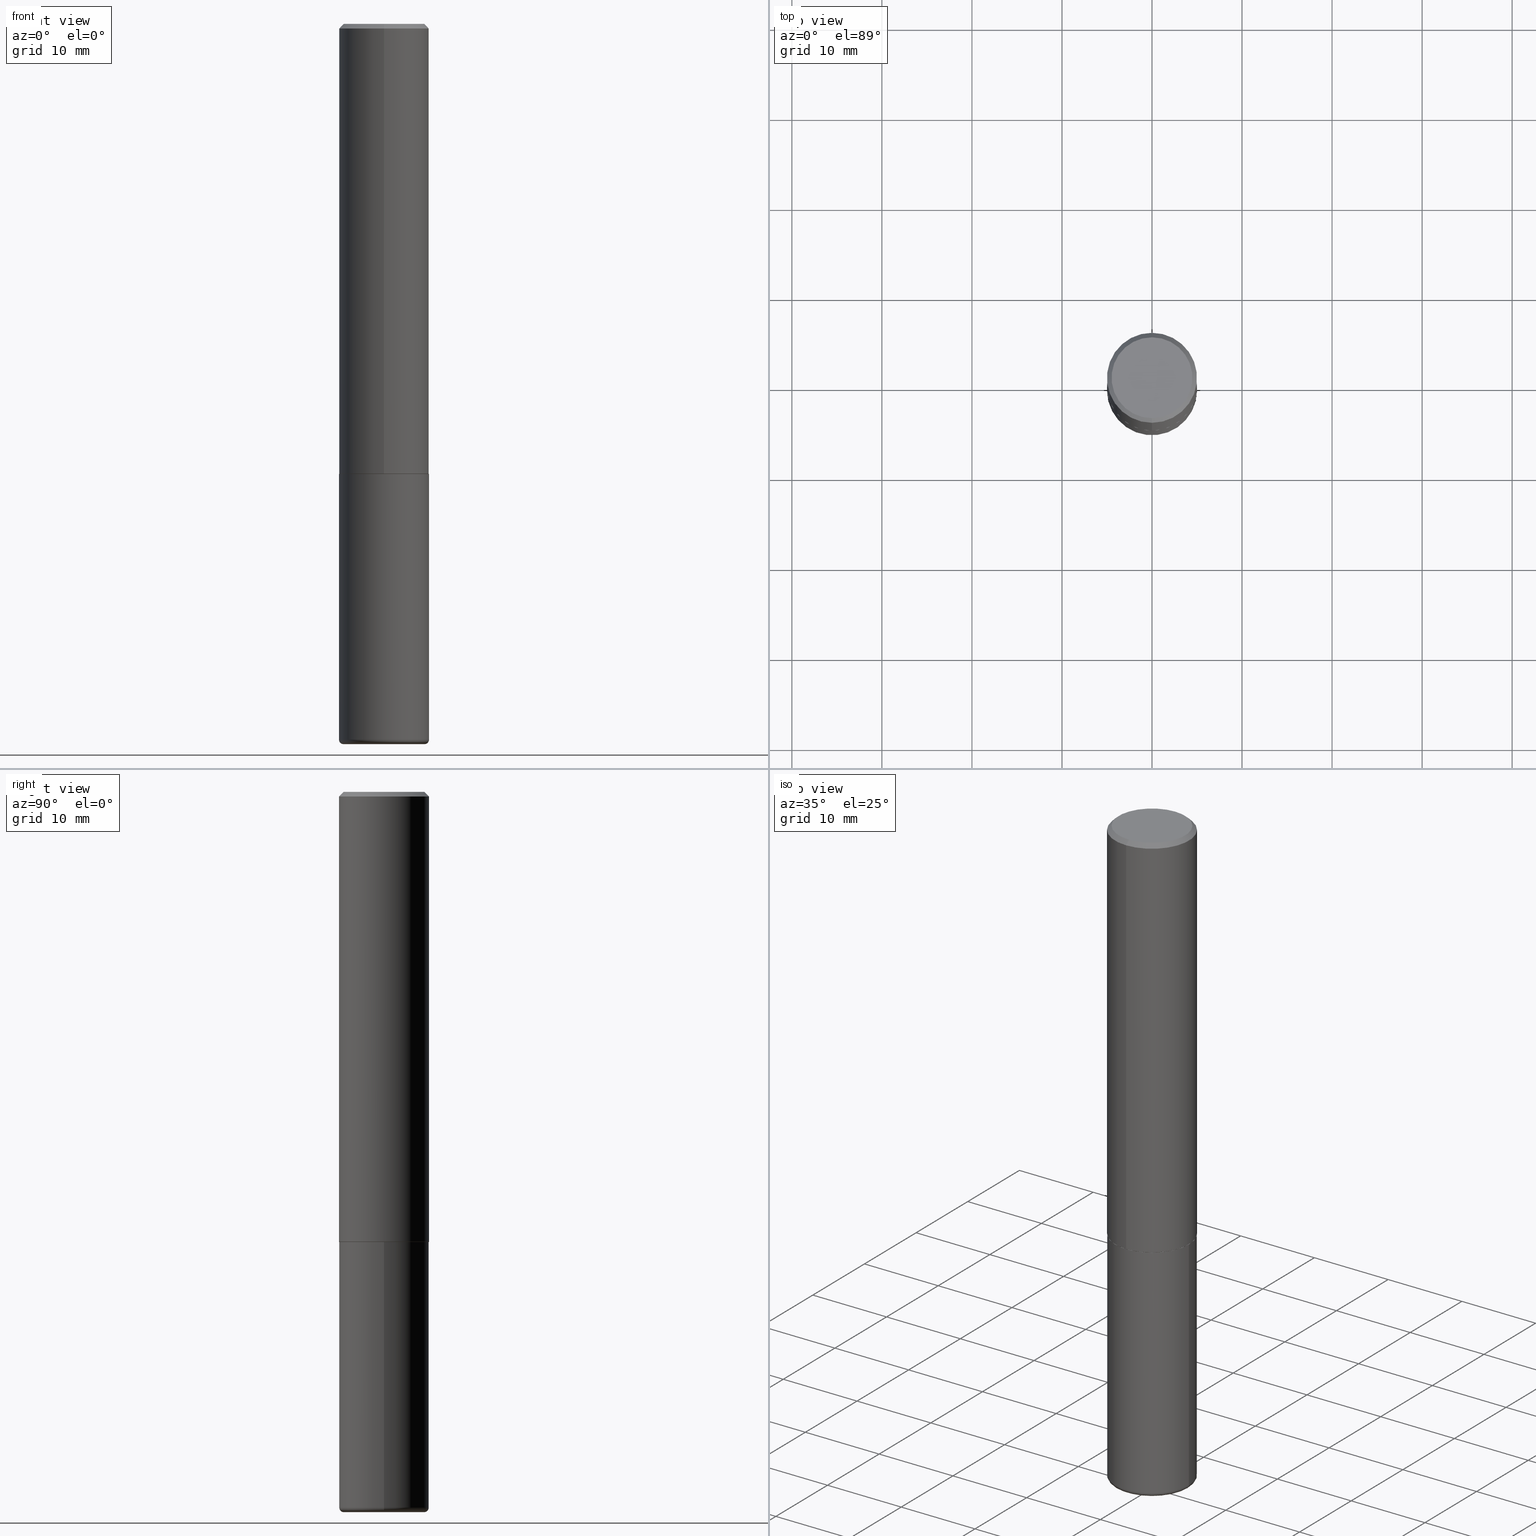
[diagram: canonical four-view strip — front | top / right | iso, engineering-drawing reading convention]
A machine part, canonical four-view strip (front | top / right | iso — engineering-drawing reading convention). The complete STEP part file that produces these views, byte-faithful:
ISO-10303-21;
HEADER;
FILE_DESCRIPTION (( 'STEP AP203' ),
    '1' );
FILE_NAME ('74412.STEP',
    '2024-03-06T15:12:04',
    ( '' ),
    ( '' ),
    'SwSTEP 2.0',
    'SolidWorks 2023',
    '' );
FILE_SCHEMA (( 'CONFIG_CONTROL_DESIGN' ));
ENDSEC;

DATA;
#1 = CALENDAR_DATE ( 2024, 6, 3 ) ;
#2 = CIRCLE ( 'NONE', #243, 0.1768499999999998407 ) ;
#3 = PLANE ( 'NONE',  #293 ) ;
#4 = EDGE_CURVE ( 'NONE', #362, #344, #64, .T. ) ;
#5 = DIRECTION ( 'NONE',  ( -6.982962677686265922E-15, -1.000000000000000000, 3.491767699944464545E-15 ) ) ;
#6 = DIRECTION ( 'NONE',  ( -2.445268841296851437E-29, 3.491767699944464545E-15, 1.000000000000000000 ) ) ;
#7 = CARTESIAN_POINT ( 'NONE',  ( 0.000000000000000000, 0.000000000000000000, 0.000000000000000000 ) ) ;
#8 = CALENDAR_DATE ( 2024, 6, 3 ) ;
#9 = AXIS2_PLACEMENT_3D ( 'NONE', #231, #6, #105 ) ;
#10 = APPROVAL_PERSON_ORGANIZATION ( #130, #324, #369 ) ;
#11 = ADVANCED_BREP_SHAPE_REPRESENTATION ( '74412', ( #114, #268, #96 ), #251 ) ;
#12 = ORIENTED_EDGE ( 'NONE', *, *, #149, .F. ) ;
#13 = ORIENTED_EDGE ( 'NONE', *, *, #414, .T. ) ;
#14 = EDGE_CURVE ( 'NONE', #250, #78, #208, .T. ) ;
#15 = CLOSED_SHELL ( 'NONE', ( #411, #229, #115, #104, #47, #366 ) ) ;
#16 = EDGE_LOOP ( 'NONE', ( #35, #174, #58, #79 ) ) ;
#17 = CLOSED_SHELL ( 'NONE', ( #373, #140, #365, #418, #90, #116, #219, #242 ) ) ;
#18 = SECURITY_CLASSIFICATION ( '', '', #56 ) ;
#19 = ORIENTED_EDGE ( 'NONE', *, *, #393, .F. ) ;
#20 = CARTESIAN_POINT ( 'NONE',  ( 0.1968499999999999694, -1.374596203102541411E-15, 9.598753983154298056E-30 ) ) ;
#21 = CARTESIAN_POINT ( 'NONE',  ( -1.350489030861325626E-15, -0.1968500000000001082, -0.01999999999999935510 ) ) ;
#22 = APPROVAL_ROLE ( '' ) ;
#23 = DIRECTION ( 'NONE',  ( -2.445468806185136597E-29, 3.491481338843145583E-15, 1.000000000000000000 ) ) ;
#24 = CC_DESIGN_PERSON_AND_ORGANIZATION_ASSIGNMENT ( #160, #257, ( #150 ) ) ;
#25 = VERTEX_POINT ( 'NONE', #125 ) ;
#26 = AXIS2_PLACEMENT_3D ( 'NONE', #97, #158, #322 ) ;
#27 = CARTESIAN_POINT ( 'NONE',  ( 1.304766576325678705E-15, 0.1768499999999998407, -3.955058252891884244E-16 ) ) ;
#28 = CARTESIAN_POINT ( 'NONE',  ( 1.234936949548815012E-15, 0.1768499999999998407, -5.065124715121833152E-16 ) ) ;
#29 = CARTESIAN_POINT ( 'NONE',  ( -5.428821863719041386E-45, 7.752188435212310874E-31, 2.220132924459896583E-16 ) ) ;
#30 = COORDINATED_UNIVERSAL_TIME_OFFSET ( 5, 0, .BEHIND. ) ;
#31 = ORIENTED_EDGE ( 'NONE', *, *, #334, .T. ) ;
#32 = ORIENTED_EDGE ( 'NONE', *, *, #163, .F. ) ;
#33 = CIRCLE ( 'NONE', #313, 0.1968500000000002470 ) ;
#34 = CIRCLE ( 'NONE', #46, 0.1771500000000000019 ) ;
#35 = ORIENTED_EDGE ( 'NONE', *, *, #73, .F. ) ;
#36 = DIRECTION ( 'NONE',  ( -6.982962677686265922E-15, -1.000000000000000000, 3.491767699944464940E-15 ) ) ;
#37 = CARTESIAN_POINT ( 'NONE',  ( 7.702248551960706711E-29, -1.099676962482037231E-14, -3.149600000000000399 ) ) ;
#38 = EDGE_CURVE ( 'NONE', #344, #61, #288, .T. ) ;
#39 = DIRECTION ( 'NONE',  ( -1.000000000000000000, 6.982962677686265922E-15, -4.876176775795935793E-29 ) ) ;
#40 = CIRCLE ( 'NONE', #9, 0.1958499999999999963 ) ;
#41 = DIRECTION ( 'NONE',  ( -1.000000000000000000, 6.982962677686265922E-15, -4.876176775795935793E-29 ) ) ;
#42 = CARTESIAN_POINT ( 'NONE',  ( -1.350489030861325626E-15, -0.1968500000000001082, -0.01999999999999935510 ) ) ;
#43 = DESIGN_CONTEXT ( 'detailed design', #395, 'design' ) ;
#44 = DIMENSIONAL_EXPONENTS ( 1.000000000000000000, 0.000000000000000000, 0.000000000000000000, 0.000000000000000000, 0.000000000000000000, 0.000000000000000000, 0.000000000000000000 ) ;
#45 = CARTESIAN_POINT ( 'NONE',  ( 0.1771500000000000019, -1.223380146317249313E-14, -3.149600000000000399 ) ) ;
#46 = AXIS2_PLACEMENT_3D ( 'NONE', #376, #23, #55 ) ;
#47 = ADVANCED_FACE ( 'NONE', ( #416 ), #106, .T. ) ;
#48 = ORIENTED_EDGE ( 'NONE', *, *, #68, .F. ) ;
#49 = DATE_AND_TIME ( #8, #356 ) ;
#50 = VERTEX_POINT ( 'NONE', #258 ) ;
#51 = DIRECTION ( 'NONE',  ( -2.445268841296851437E-29, 3.491767699944464545E-15, 1.000000000000000000 ) ) ;
#52 = EDGE_LOOP ( 'NONE', ( #347, #317, #66, #12 ) ) ;
#53 = CARTESIAN_POINT ( 'NONE',  ( 7.654072816478859974E-29, -1.092798744244516270E-14, -3.129900000000000571 ) ) ;
#54 = AXIS2_PLACEMENT_3D ( 'NONE', #198, #384, #226 ) ;
#55 = DIRECTION ( 'NONE',  ( 1.000000000000000000, -6.982962677686261189E-15, 0.000000000000000000 ) ) ;
#56 = SECURITY_CLASSIFICATION_LEVEL ( 'unclassified' ) ;
#57 = EDGE_CURVE ( 'NONE', #377, #362, #279, .T. ) ;
#58 = ORIENTED_EDGE ( 'NONE', *, *, #68, .T. ) ;
#59 = DIRECTION ( 'NONE',  ( -6.982962677686265922E-15, -1.000000000000000000, 4.184602492209747448E-15 ) ) ;
#60 = DIRECTION ( 'NONE',  ( -2.445268841296851437E-29, 3.491767699944464545E-15, 1.000000000000000000 ) ) ;
#61 = VERTEX_POINT ( 'NONE', #65 ) ;
#62 = CARTESIAN_POINT ( 'NONE',  ( -5.428821863719041386E-45, 7.752188435212310874E-31, 2.220132924459896583E-16 ) ) ;
#63 = APPLICATION_PROTOCOL_DEFINITION ( 'international standard', 'config_control_design', 1994, #397 ) ;
#64 = LINE ( 'NONE', #135, #269 ) ;
#65 = CARTESIAN_POINT ( 'NONE',  ( 1.374596203102542200E-15, 0.1968499999999999694, -0.02000000000000072900 ) ) ;
#66 = ORIENTED_EDGE ( 'NONE', *, *, #4, .T. ) ;
#67 = LINE ( 'NONE', #309, #166 ) ;
#68 = EDGE_CURVE ( 'NONE', #144, #210, #339, .T. ) ;
#69 = DIRECTION ( 'NONE',  ( -2.445268841296850876E-29, 3.491767699944464940E-15, 1.000000000000000000 ) ) ;
#70 = AXIS2_PLACEMENT_3D ( 'NONE', #37, #234, #39 ) ;
#71 = CARTESIAN_POINT ( 'NONE',  ( 4.813905344975440714E-29, -6.872981015512730918E-15, -1.968499999999999694 ) ) ;
#72 = CARTESIAN_POINT ( 'NONE',  ( 4.813905344975440714E-29, -6.872981015512730918E-15, -1.968499999999999694 ) ) ;
#73 = EDGE_CURVE ( 'NONE', #50, #88, #205, .T. ) ;
#74 = AXIS2_PLACEMENT_3D ( 'NONE', #352, #256, #350 ) ;
#75 = EDGE_CURVE ( 'NONE', #362, #377, #33, .T. ) ;
#76 = CYLINDRICAL_SURFACE ( 'NONE', #223, 0.1968500000000001360 ) ;
#77 = DIRECTION ( 'NONE',  ( -2.445268841296851437E-29, 3.491767699944464545E-15, 1.000000000000000000 ) ) ;
#78 = VERTEX_POINT ( 'NONE', #27 ) ;
#79 = ORIENTED_EDGE ( 'NONE', *, *, #207, .F. ) ;
#80 = ORIENTED_EDGE ( 'NONE', *, *, #334, .F. ) ;
#81 = LINE ( 'NONE', #315, #82 ) ;
#82 = VECTOR ( 'NONE', #182, 39.37007874015748143 ) ;
#83 = DATE_TIME_ROLE ( 'classification_date' ) ;
#84 = ORIENTED_EDGE ( 'NONE', *, *, #38, .F. ) ;
#85 = DIRECTION ( 'NONE',  ( 1.000000000000000000, -6.982962677686261189E-15, 0.000000000000000000 ) ) ;
#86 = PERSON_AND_ORGANIZATION ( #186, #154 ) ;
#87 = CARTESIAN_POINT ( 'NONE',  ( 1.374596203102542200E-15, 0.1968499999999999694, -0.02000000000000072900 ) ) ;
#88 = VERTEX_POINT ( 'NONE', #188 ) ;
#89 = CALENDAR_DATE ( 2024, 6, 3 ) ;
#90 = ADVANCED_FACE ( 'NONE', ( #155 ), #103, .T. ) ;
#91 = VERTEX_POINT ( 'NONE', #141 ) ;
#92 = LENGTH_MEASURE_WITH_UNIT ( LENGTH_MEASURE( 0.02539999999999999897 ), #126 );
#93 = DIRECTION ( 'NONE',  ( -2.445268841296851437E-29, 3.491767699944464545E-15, 1.000000000000000000 ) ) ;
#94 = CALENDAR_DATE ( 2024, 6, 3 ) ;
#95 = CIRCLE ( 'NONE', #328, 0.1958499999999999963 ) ;
#96 = AXIS2_PLACEMENT_3D ( 'NONE', #367, #277, #286 ) ;
#97 = CARTESIAN_POINT ( 'NONE',  ( 4.890537682593712927E-31, -6.983535399888942699E-17, -0.02000000000000004205 ) ) ;
#98 = FACE_OUTER_BOUND ( 'NONE', #364, .T. ) ;
#99 = CARTESIAN_POINT ( 'NONE',  ( 4.813511714092851266E-29, -6.873544717340677315E-15, -1.968499999999999694 ) ) ;
#100 = ORIENTED_EDGE ( 'NONE', *, *, #148, .F. ) ;
#101 = AXIS2_PLACEMENT_3D ( 'NONE', #329, #303, #379 ) ;
#102 = APPROVAL_PERSON_ORGANIZATION ( #86, #338, #381 ) ;
#103 = CYLINDRICAL_SURFACE ( 'NONE', #391, 0.1968500000000001360 ) ;
#104 = ADVANCED_FACE ( 'NONE', ( #235 ), #332, .T. ) ;
#105 = DIRECTION ( 'NONE',  ( -6.982962677686265922E-15, -1.000000000000000000, 4.184602492209747448E-15 ) ) ;
#106 = TOROIDAL_SURFACE ( 'NONE', #259, 0.1771500000000000019, 0.01969999999999987733 ) ;
#107 = CIRCLE ( 'NONE', #147, 0.1968500000000000250 ) ;
#108 = DIRECTION ( 'NONE',  ( -6.982962677686265922E-15, -1.000000000000000000, 4.184602492209747448E-15 ) ) ;
#109 = EDGE_CURVE ( 'NONE', #314, #245, #402, .T. ) ;
#110 = AXIS2_PLACEMENT_3D ( 'NONE', #28, #127, #262 ) ;
#111 = CARTESIAN_POINT ( 'NONE',  ( 4.890537682593712927E-31, -6.983535399888942699E-17, -0.02000000000000004205 ) ) ;
#112 = CARTESIAN_POINT ( 'NONE',  ( 1.398703375343782440E-15, 0.1968499999999933914, -1.967500000000000471 ) ) ;
#113 = CARTESIAN_POINT ( 'NONE',  ( -0.1968499999999999694, 1.398703375343756999E-15, -9.682923725166782276E-30 ) ) ;
#114 = MANIFOLD_SOLID_BREP ( 'Body-Move/Copy2[1]', #15 ) ;
#115 = ADVANCED_FACE ( 'NONE', ( #361 ), #3, .F. ) ;
#116 = ADVANCED_FACE ( 'NONE', ( #357 ), #299, .T. ) ;
#117 = CARTESIAN_POINT ( 'NONE',  ( -1.374596203102495065E-15, -0.1968500000000071026, -1.967499999999998916 ) ) ;
#118 = DIRECTION ( 'NONE',  ( -2.445468806185136597E-29, 3.491481338843145583E-15, 1.000000000000000000 ) ) ;
#119 = ORIENTED_EDGE ( 'NONE', *, *, #163, .T. ) ;
#120 = AXIS2_PLACEMENT_3D ( 'NONE', #389, #171, #85 ) ;
#121 = AXIS2_PLACEMENT_3D ( 'NONE', #304, #51, #335 ) ;
#122 = CARTESIAN_POINT ( 'NONE',  ( 4.890537682593712927E-31, -6.983535399888942699E-17, -0.02000000000000004205 ) ) ;
#123 = MECHANICAL_CONTEXT ( 'NONE', #397, 'mechanical' ) ;
#124 = ORIENTED_EDGE ( 'NONE', *, *, #359, .F. ) ;
#125 = CARTESIAN_POINT ( 'NONE',  ( 1.395150661665005404E-15, 0.1958499999999931407, -1.968500000000000583 ) ) ;
#126 =( LENGTH_UNIT ( ) NAMED_UNIT ( * ) SI_UNIT ( $, .METRE. ) );
#127 = DIRECTION ( 'NONE',  ( 2.445268841296850876E-29, -3.491767699944464940E-15, -1.000000000000000000 ) ) ;
#128 = EDGE_LOOP ( 'NONE', ( #254, #331, #230, #342 ) ) ;
#129 = DIRECTION ( 'NONE',  ( 5.024295867788490741E-15, 0.7071067811866103003, 0.7071067811864847341 ) ) ;
#130 = PERSON_AND_ORGANIZATION ( #186, #154 ) ;
#131 = DIRECTION ( 'NONE',  ( 1.000000000000000000, -6.982962677686269866E-15, 0.000000000000000000 ) ) ;
#132 = PERSON_AND_ORGANIZATION_ROLE ( 'creator' ) ;
#133 = AXIS2_PLACEMENT_3D ( 'NONE', #139, #238, #108 ) ;
#134 = VECTOR ( 'NONE', #341, 39.37007874015748143 ) ;
#135 = CARTESIAN_POINT ( 'NONE',  ( -1.374596203102542397E-15, -0.1968500000000001360, 6.873544717340683232E-16 ) ) ;
#136 = DIRECTION ( 'NONE',  ( -2.445468806185136597E-29, 3.491481338843145583E-15, 1.000000000000000000 ) ) ;
#137 = VECTOR ( 'NONE', #263, 39.37007874015748854 ) ;
#138 = AXIS2_PLACEMENT_3D ( 'NONE', #152, #118, #184 ) ;
#139 = CARTESIAN_POINT ( 'NONE',  ( 4.813511714092851266E-29, -6.873544717340677315E-15, -1.968499999999999694 ) ) ;
#140 = ADVANCED_FACE ( 'NONE', ( #239 ), #76, .T. ) ;
#141 = CARTESIAN_POINT ( 'NONE',  ( -1.367613240424807079E-15, -0.1958500000000068797, -1.968499999999999028 ) ) ;
#142 = VECTOR ( 'NONE', #129, 39.37007874015748143 ) ;
#143 = DIRECTION ( 'NONE',  ( -2.445268841296851437E-29, 3.491767699944464545E-15, 1.000000000000000000 ) ) ;
#144 = VERTEX_POINT ( 'NONE', #45 ) ;
#145 = CC_DESIGN_DATE_AND_TIME_ASSIGNMENT ( #412, #187, ( #265 ) ) ;
#146 = EDGE_CURVE ( 'NONE', #250, #344, #330, .T. ) ;
#147 = AXIS2_PLACEMENT_3D ( 'NONE', #72, #169, #297 ) ;
#148 = EDGE_CURVE ( 'NONE', #144, #50, #289, .T. ) ;
#149 = EDGE_CURVE ( 'NONE', #61, #344, #415, .T. ) ;
#150 = PRODUCT ( '74412', '74412', '', ( #123 ) ) ;
#151 = CALENDAR_DATE ( 2024, 6, 3 ) ;
#152 = CARTESIAN_POINT ( 'NONE',  ( 0.000000000000000000, 0.000000000000000000, 0.000000000000000000 ) ) ;
#153 = ORIENTED_EDGE ( 'NONE', *, *, #109, .F. ) ;
#154 = ORGANIZATION ( 'UNSPECIFIED', 'UNSPECIFIED', '' ) ;
#155 = FACE_OUTER_BOUND ( 'NONE', #52, .T. ) ;
#156 = DIRECTION ( 'NONE',  ( -2.445268841296851437E-29, 3.491767699944464545E-15, 1.000000000000000000 ) ) ;
#157 = PLANE ( 'NONE',  #110 ) ;
#158 = DIRECTION ( 'NONE',  ( -2.445268841296851437E-29, 3.491767699944464545E-15, 1.000000000000000000 ) ) ;
#159 =( NAMED_UNIT ( * ) PLANE_ANGLE_UNIT ( ) SI_UNIT ( $, .RADIAN. ) );
#160 = PERSON_AND_ORGANIZATION ( #186, #154 ) ;
#161 = EDGE_LOOP ( 'NONE', ( #80, #197, #119, #185 ) ) ;
#162 = DIRECTION ( 'NONE',  ( 1.000000000000000000, -6.982962677686271444E-15, 4.883557194083114022E-29 ) ) ;
#163 = EDGE_CURVE ( 'NONE', #91, #362, #67, .T. ) ;
#164 = DIRECTION ( 'NONE',  ( -2.445268841296851437E-29, 3.491767699944464940E-15, 1.000000000000000000 ) ) ;
#165 = EDGE_CURVE ( 'NONE', #245, #314, #107, .T. ) ;
#166 = VECTOR ( 'NONE', #191, 39.37007874015748143 ) ;
#167 = LOCAL_TIME ( 10, 12, 4.000000000000000000, #248 ) ;
#168 = DIRECTION ( 'NONE',  ( -2.445468806185136597E-29, 3.491481338843145583E-15, 1.000000000000000000 ) ) ;
#169 = DIRECTION ( 'NONE',  ( -2.445468806185136597E-29, 3.491481338843145583E-15, 1.000000000000000000 ) ) ;
#170 = UNCERTAINTY_MEASURE_WITH_UNIT (LENGTH_MEASURE( 1.000000000000000082E-05 ), #227, 'distance_accuracy_value', 'NONE');
#171 = DIRECTION ( 'NONE',  ( -2.445468806185136597E-29, 3.491481338843145583E-15, 1.000000000000000000 ) ) ;
#172 = CARTESIAN_POINT ( 'NONE',  ( 0.000000000000000000, 0.000000000000000000, 0.000000000000000000 ) ) ;
#173 = CC_DESIGN_PERSON_AND_ORGANIZATION_ASSIGNMENT ( #375, #370, ( #18 ) ) ;
#174 = ORIENTED_EDGE ( 'NONE', *, *, #405, .T. ) ;
#175 = ORIENTED_EDGE ( 'NONE', *, *, #146, .T. ) ;
#176 = ORIENTED_EDGE ( 'NONE', *, *, #359, .T. ) ;
#177 = EDGE_CURVE ( 'NONE', #91, #25, #40, .T. ) ;
#178 = DIRECTION ( 'NONE',  ( -2.445468806185136597E-29, 3.491481338843145583E-15, 1.000000000000000000 ) ) ;
#179 = CYLINDRICAL_SURFACE ( 'NONE', #138, 0.1968499999999999694 ) ;
#180 = DIRECTION ( 'NONE',  ( 7.105427357601001859E-15, 1.000000000000000000, -3.491481338843145583E-15 ) ) ;
#181 = LINE ( 'NONE', #20, #392 ) ;
#182 = DIRECTION ( 'NONE',  ( -2.445268841296851437E-29, 3.491767699944464940E-15, 1.000000000000000000 ) ) ;
#183 = PRODUCT_DEFINITION_SHAPE ( 'NONE', 'NONE',  #265 ) ;
#184 = DIRECTION ( 'NONE',  ( 1.000000000000000000, -6.982962677686266711E-15, 4.876176775795935793E-29 ) ) ;
#185 = ORIENTED_EDGE ( 'NONE', *, *, #57, .F. ) ;
#186 = PERSON ( 'UNSPECIFIED', 'UNSPECIFIED', 'UNSPECIFIED', ('UNSPECIFIED'), ('UNSPECIFIED'), ('UNSPECIFIED') ) ;
#187 = DATE_TIME_ROLE ( 'creation_date' ) ;
#188 = CARTESIAN_POINT ( 'NONE',  ( -0.1968499999999999417, -9.529284067101404126E-15, -3.129900000000000571 ) ) ;
#189 = CC_DESIGN_PERSON_AND_ORGANIZATION_ASSIGNMENT ( #310, #132, ( #270 ) ) ;
#190 = ORIENTED_EDGE ( 'NONE', *, *, #75, .T. ) ;
#191 = DIRECTION ( 'NONE',  ( -4.937700262164969294E-15, -0.7071067811866054154, 0.7071067811864896191 ) ) ;
#192 = AXIS2_PLACEMENT_3D ( 'NONE', #321, #136, #131 ) ;
#193 = VECTOR ( 'NONE', #403, 39.37007874015748854 ) ;
#194 = DIRECTION ( 'NONE',  ( -2.445468806185136597E-29, 3.491481338843145583E-15, 1.000000000000000000 ) ) ;
#195 = APPROVAL_DATE_TIME ( #255, #338 ) ;
#196 = CARTESIAN_POINT ( 'NONE',  ( -0.1968500000000000250, -7.501780853635190206E-15, -1.968499999999999694 ) ) ;
#197 = ORIENTED_EDGE ( 'NONE', *, *, #294, .T. ) ;
#198 = CARTESIAN_POINT ( 'NONE',  ( 4.890537682593712927E-31, -6.983535399888942699E-17, -0.02000000000000004205 ) ) ;
#199 = DIRECTION ( 'NONE',  ( -2.445268841296851437E-29, 3.491767699944464545E-15, 1.000000000000000000 ) ) ;
#200 = CC_DESIGN_PERSON_AND_ORGANIZATION_ASSIGNMENT ( #272, #203, ( #265 ) ) ;
#201 = ORIENTED_EDGE ( 'NONE', *, *, #294, .F. ) ;
#202 = AXIS2_PLACEMENT_3D ( 'NONE', #410, #69, #36 ) ;
#203 = PERSON_AND_ORGANIZATION_ROLE ( 'creator' ) ;
#204 = DIRECTION ( 'NONE',  ( 1.000000000000000000, -6.982962677686267499E-15, 0.000000000000000000 ) ) ;
#205 = CIRCLE ( 'NONE', #264, 0.01969999999999989468 ) ;
#206 = CC_DESIGN_APPROVAL ( #324, ( #265 ) ) ;
#207 = EDGE_CURVE ( 'NONE', #88, #210, #274, .T. ) ;
#208 = CIRCLE ( 'NONE', #232, 0.1768499999999998407 ) ;
#209 = CONICAL_SURFACE ( 'NONE', #281, 0.1968500000000000527, 0.7853981633974466137 ) ;
#210 = VERTEX_POINT ( 'NONE', #401 ) ;
#211 = ORIENTED_EDGE ( 'NONE', *, *, #75, .F. ) ;
#212 = EDGE_CURVE ( 'NONE', #78, #250, #2, .T. ) ;
#213 = DIRECTION ( 'NONE',  ( 2.445268841296851437E-29, -3.491767699944464545E-15, -1.000000000000000000 ) ) ;
#214 = AXIS2_PLACEMENT_3D ( 'NONE', #71, #168, #204 ) ;
#215 = LOCAL_TIME ( 10, 12, 4.000000000000000000, #30 ) ;
#216 = PERSON_AND_ORGANIZATION ( #186, #154 ) ;
#217 = ORIENTED_EDGE ( 'NONE', *, *, #414, .F. ) ;
#218 = COORDINATED_UNIVERSAL_TIME_OFFSET ( 5, 0, .BEHIND. ) ;
#219 = ADVANCED_FACE ( 'NONE', ( #318 ), #285, .F. ) ;
#220 = DIRECTION ( 'NONE',  ( -1.000000000000000000, 7.105427357600965571E-15, 0.000000000000000000 ) ) ;
#221 = ORIENTED_EDGE ( 'NONE', *, *, #177, .T. ) ;
#222 = ORIENTED_EDGE ( 'NONE', *, *, #212, .F. ) ;
#223 = AXIS2_PLACEMENT_3D ( 'NONE', #295, #77, #5 ) ;
#224 = APPROVAL_STATUS ( 'not_yet_approved' ) ;
#225 = EDGE_LOOP ( 'NONE', ( #247, #175, #394, #217 ) ) ;
#226 = DIRECTION ( 'NONE',  ( 6.982962677686265133E-15, 1.000000000000000000, -3.491137977679279029E-15 ) ) ;
#227 =( CONVERSION_BASED_UNIT ( 'INCH', #92 ) LENGTH_UNIT ( ) NAMED_UNIT ( #44 ) );
#228 = APPROVAL_STATUS ( 'not_yet_approved' ) ;
#229 = ADVANCED_FACE ( 'NONE', ( #261 ), #249, .T. ) ;
#230 = ORIENTED_EDGE ( 'NONE', *, *, #393, .T. ) ;
#231 = CARTESIAN_POINT ( 'NONE',  ( 4.813511714092851266E-29, -6.873544717340677315E-15, -1.968499999999999694 ) ) ;
#232 = AXIS2_PLACEMENT_3D ( 'NONE', #29, #156, #406 ) ;
#233 = CONICAL_SURFACE ( 'NONE', #121, 0.1958499999999999963, 0.7853981633975336552 ) ;
#234 = DIRECTION ( 'NONE',  ( 2.438088387897960049E-29, -3.491481338843145188E-15, -1.000000000000000000 ) ) ;
#235 = FACE_OUTER_BOUND ( 'NONE', #128, .T. ) ;
#236 = DIRECTION ( 'NONE',  ( 1.000000000000000000, -6.982962677686266711E-15, 4.876176775795935793E-29 ) ) ;
#237 = CONICAL_SURFACE ( 'NONE', #54, 0.1968500000000000527, 0.7853981633974466137 ) ;
#238 = DIRECTION ( 'NONE',  ( -2.445268841296851437E-29, 3.491767699944464545E-15, 1.000000000000000000 ) ) ;
#239 = FACE_OUTER_BOUND ( 'NONE', #346, .T. ) ;
#240 = FACE_OUTER_BOUND ( 'NONE', #400, .T. ) ;
#241 = ORIENTED_EDGE ( 'NONE', *, *, #165, .T. ) ;
#242 = ADVANCED_FACE ( 'NONE', ( #291 ), #157, .F. ) ;
#243 = AXIS2_PLACEMENT_3D ( 'NONE', #62, #93, #374 ) ;
#244 = APPROVAL_PERSON_ORGANIZATION ( #378, #327, #22 ) ;
#245 = VERTEX_POINT ( 'NONE', #196 ) ;
#246 = APPROVAL_DATE_TIME ( #49, #324 ) ;
#247 = ORIENTED_EDGE ( 'NONE', *, *, #14, .F. ) ;
#248 = COORDINATED_UNIVERSAL_TIME_OFFSET ( 5, 0, .BEHIND. ) ;
#249 = TOROIDAL_SURFACE ( 'NONE', #371, 0.1771500000000000019, 0.01969999999999987733 ) ;
#250 = VERTEX_POINT ( 'NONE', #385 ) ;
#251 =( GEOMETRIC_REPRESENTATION_CONTEXT ( 3 ) GLOBAL_UNCERTAINTY_ASSIGNED_CONTEXT ( ( #170 ) ) GLOBAL_UNIT_ASSIGNED_CONTEXT ( ( #227, #159, #320 ) ) REPRESENTATION_CONTEXT ( 'NONE', 'WORKASPACE' ) );
#252 = SHAPE_DEFINITION_REPRESENTATION ( #183, #11 ) ;
#253 = FACE_OUTER_BOUND ( 'NONE', #287, .T. ) ;
#254 = ORIENTED_EDGE ( 'NONE', *, *, #388, .F. ) ;
#255 = DATE_AND_TIME ( #94, #167 ) ;
#256 = DIRECTION ( 'NONE',  ( -2.445268841296851437E-29, 3.491767699944464545E-15, 1.000000000000000000 ) ) ;
#257 = PERSON_AND_ORGANIZATION_ROLE ( 'design_owner' ) ;
#258 = CARTESIAN_POINT ( 'NONE',  ( -0.1771500000000000019, -9.633663617761380556E-15, -3.149600000000000399 ) ) ;
#259 = AXIS2_PLACEMENT_3D ( 'NONE', #380, #194, #409 ) ;
#260 = LOCAL_TIME ( 10, 12, 4.000000000000000000, #349 ) ;
#261 = FACE_OUTER_BOUND ( 'NONE', #298, .T. ) ;
#262 = DIRECTION ( 'NONE',  ( 6.982962677686265922E-15, 1.000000000000000000, -3.491767699944464940E-15 ) ) ;
#263 = DIRECTION ( 'NONE',  ( -4.851104656540954809E-15, -0.7071067811865486830, -0.7071067811865462405 ) ) ;
#264 = AXIS2_PLACEMENT_3D ( 'NONE', #368, #180, #220 ) ;
#265 = PRODUCT_DEFINITION ( 'UNKNOWN', '', #270, #43 ) ;
#266 = DIRECTION ( 'NONE',  ( -2.445468806185136597E-29, 3.491481338843145583E-15, 1.000000000000000000 ) ) ;
#267 = CARTESIAN_POINT ( 'NONE',  ( 4.813905344975440714E-29, -6.872981015512730918E-15, -1.968499999999999694 ) ) ;
#268 = MANIFOLD_SOLID_BREP ( 'Body-Move/Copy2[2]', #17 ) ;
#269 = VECTOR ( 'NONE', #164, 39.37007874015748143 ) ;
#270 = PRODUCT_DEFINITION_FORMATION_WITH_SPECIFIED_SOURCE ( 'ANY', '', #150, .NOT_KNOWN. ) ;
#271 = DIRECTION ( 'NONE',  ( 2.438088387897960049E-29, -3.491481338843145188E-15, -1.000000000000000000 ) ) ;
#272 = PERSON_AND_ORGANIZATION ( #186, #154 ) ;
#273 = ORIENTED_EDGE ( 'NONE', *, *, #177, .F. ) ;
#274 = CIRCLE ( 'NONE', #192, 0.1968499999999999694 ) ;
#275 = ORIENTED_EDGE ( 'NONE', *, *, #405, .F. ) ;
#276 = APPROVAL_STATUS ( 'not_yet_approved' ) ;
#277 = DIRECTION ( 'NONE',  ( 0.000000000000000000, 0.000000000000000000, 1.000000000000000000 ) ) ;
#278 = DATE_AND_TIME ( #89, #260 ) ;
#279 = CIRCLE ( 'NONE', #74, 0.1968500000000002470 ) ;
#280 = ORIENTED_EDGE ( 'NONE', *, *, #388, .T. ) ;
#281 = AXIS2_PLACEMENT_3D ( 'NONE', #122, #213, #316 ) ;
#282 = APPROVAL_DATE_TIME ( #408, #327 ) ;
#283 = ORIENTED_EDGE ( 'NONE', *, *, #302, .T. ) ;
#284 = ORIENTED_EDGE ( 'NONE', *, *, #148, .T. ) ;
#285 = PLANE ( 'NONE',  #202 ) ;
#286 = DIRECTION ( 'NONE',  ( 1.000000000000000000, 0.000000000000000000, 0.000000000000000000 ) ) ;
#287 = EDGE_LOOP ( 'NONE', ( #308, #222, #13, #372 ) ) ;
#288 = CIRCLE ( 'NONE', #26, 0.1968500000000000527 ) ;
#289 = CIRCLE ( 'NONE', #120, 0.1771500000000000019 ) ;
#290 = DIRECTION ( 'NONE',  ( -2.445268841296851437E-29, 3.491767699944464545E-15, 1.000000000000000000 ) ) ;
#291 = FACE_OUTER_BOUND ( 'NONE', #336, .T. ) ;
#292 = DIRECTION ( 'NONE',  ( -6.982962677686265922E-15, -1.000000000000000000, 3.491767699944464545E-15 ) ) ;
#293 = AXIS2_PLACEMENT_3D ( 'NONE', #267, #271, #41 ) ;
#294 = EDGE_CURVE ( 'NONE', #25, #91, #95, .T. ) ;
#295 = CARTESIAN_POINT ( 'NONE',  ( 0.000000000000000000, 0.000000000000000000, 0.000000000000000000 ) ) ;
#296 = CC_DESIGN_DATE_AND_TIME_ASSIGNMENT ( #278, #83, ( #18 ) ) ;
#297 = DIRECTION ( 'NONE',  ( 1.000000000000000000, -6.982962677686267499E-15, 0.000000000000000000 ) ) ;
#298 = EDGE_LOOP ( 'NONE', ( #284, #300, #124, #48 ) ) ;
#299 = CONICAL_SURFACE ( 'NONE', #133, 0.1958499999999999963, 0.7853981633975336552 ) ;
#300 = ORIENTED_EDGE ( 'NONE', *, *, #73, .T. ) ;
#301 = DIRECTION ( 'NONE',  ( 1.000000000000000000, -6.982962677686269866E-15, 0.000000000000000000 ) ) ;
#302 = EDGE_CURVE ( 'NONE', #377, #61, #81, .T. ) ;
#303 = DIRECTION ( 'NONE',  ( -6.982962677686266711E-15, -1.000000000000000000, 3.491481338843145583E-15 ) ) ;
#304 = CARTESIAN_POINT ( 'NONE',  ( 4.813511714092851266E-29, -6.873544717340677315E-15, -1.968499999999999694 ) ) ;
#305 = LINE ( 'NONE', #348, #142 ) ;
#306 = PERSON_AND_ORGANIZATION_ROLE ( 'design_supplier' ) ;
#307 = LINE ( 'NONE', #87, #193 ) ;
#308 = ORIENTED_EDGE ( 'NONE', *, *, #146, .F. ) ;
#309 = CARTESIAN_POINT ( 'NONE',  ( -1.367613240424807079E-15, -0.1958500000000068797, -1.968499999999999028 ) ) ;
#310 = PERSON_AND_ORGANIZATION ( #186, #154 ) ;
#311 = DIRECTION ( 'NONE',  ( -6.982962677686265922E-15, -1.000000000000000000, 4.163344669033670112E-15 ) ) ;
#312 = DIRECTION ( 'NONE',  ( -2.445468806185136597E-29, 3.491481338843145583E-15, 1.000000000000000000 ) ) ;
#313 = AXIS2_PLACEMENT_3D ( 'NONE', #345, #60, #311 ) ;
#314 = VERTEX_POINT ( 'NONE', #407 ) ;
#315 = CARTESIAN_POINT ( 'NONE',  ( 1.398703375343757985E-15, 0.1968500000000001360, -6.873544717340683232E-16 ) ) ;
#316 = DIRECTION ( 'NONE',  ( 6.982962677686265133E-15, 1.000000000000000000, -3.491137977679279029E-15 ) ) ;
#317 = ORIENTED_EDGE ( 'NONE', *, *, #57, .T. ) ;
#318 = FACE_OUTER_BOUND ( 'NONE', #319, .T. ) ;
#319 = EDGE_LOOP ( 'NONE', ( #273, #201 ) ) ;
#320 =( NAMED_UNIT ( * ) SI_UNIT ( $, .STERADIAN. ) SOLID_ANGLE_UNIT ( ) );
#321 = CARTESIAN_POINT ( 'NONE',  ( 7.654072816478859974E-29, -1.092798744244516270E-14, -3.129900000000000571 ) ) ;
#322 = DIRECTION ( 'NONE',  ( -6.982962677686265133E-15, -1.000000000000000000, 3.491137977679279029E-15 ) ) ;
#323 = CC_DESIGN_APPROVAL ( #338, ( #270 ) ) ;
#324 = APPROVAL ( #276, 'UNSPECIFIED' ) ;
#325 = PLANE ( 'NONE',  #70 ) ;
#326 = COORDINATED_UNIVERSAL_TIME_OFFSET ( 5, 0, .BEHIND. ) ;
#327 = APPROVAL ( #224, 'UNSPECIFIED' ) ;
#328 = AXIS2_PLACEMENT_3D ( 'NONE', #99, #290, #59 ) ;
#329 = CARTESIAN_POINT ( 'NONE',  ( 0.1771500000000000019, -1.216501928079728352E-14, -3.129900000000000571 ) ) ;
#330 = LINE ( 'NONE', #42, #137 ) ;
#331 = ORIENTED_EDGE ( 'NONE', *, *, #207, .T. ) ;
#332 = CYLINDRICAL_SURFACE ( 'NONE', #355, 0.1968499999999999694 ) ;
#333 = CC_DESIGN_APPROVAL ( #327, ( #18 ) ) ;
#334 = EDGE_CURVE ( 'NONE', #25, #377, #305, .T. ) ;
#335 = DIRECTION ( 'NONE',  ( -6.982962677686265922E-15, -1.000000000000000000, 4.184602492209747448E-15 ) ) ;
#336 = EDGE_LOOP ( 'NONE', ( #383, #396 ) ) ;
#337 = ORIENTED_EDGE ( 'NONE', *, *, #4, .F. ) ;
#338 = APPROVAL ( #228, 'UNSPECIFIED' ) ;
#339 = CIRCLE ( 'NONE', #101, 0.01969999999999989468 ) ;
#340 = CC_DESIGN_SECURITY_CLASSIFICATION ( #18, ( #270 ) ) ;
#341 = DIRECTION ( 'NONE',  ( -2.445468806185136877E-29, 3.491481338843145188E-15, 1.000000000000000000 ) ) ;
#342 = ORIENTED_EDGE ( 'NONE', *, *, #165, .F. ) ;
#343 = FACE_OUTER_BOUND ( 'NONE', #398, .T. ) ;
#344 = VERTEX_POINT ( 'NONE', #21 ) ;
#345 = CARTESIAN_POINT ( 'NONE',  ( 4.811066445251554069E-29, -6.870052949640732965E-15, -1.967499999999999805 ) ) ;
#346 = EDGE_LOOP ( 'NONE', ( #190, #283, #84, #337 ) ) ;
#347 = ORIENTED_EDGE ( 'NONE', *, *, #302, .F. ) ;
#348 = CARTESIAN_POINT ( 'NONE',  ( 1.391597947986204111E-15, 0.1958499999999931407, -1.968500000000000583 ) ) ;
#349 = COORDINATED_UNIVERSAL_TIME_OFFSET ( 5, 0, .BEHIND. ) ;
#350 = DIRECTION ( 'NONE',  ( -6.982962677686265922E-15, -1.000000000000000000, 4.163344669033670112E-15 ) ) ;
#351 = FACE_OUTER_BOUND ( 'NONE', #225, .T. ) ;
#352 = CARTESIAN_POINT ( 'NONE',  ( 4.811066445251554069E-29, -6.870052949640732965E-15, -1.967499999999999805 ) ) ;
#353 = DIRECTION ( 'NONE',  ( -6.982962677686265133E-15, -1.000000000000000000, 3.491137977679279029E-15 ) ) ;
#354 = APPLICATION_PROTOCOL_DEFINITION ( 'international standard', 'config_control_design', 1994, #395 ) ;
#355 = AXIS2_PLACEMENT_3D ( 'NONE', #7, #266, #236 ) ;
#356 = LOCAL_TIME ( 10, 12, 4.000000000000000000, #218 ) ;
#357 = FACE_OUTER_BOUND ( 'NONE', #161, .T. ) ;
#358 = CC_DESIGN_PERSON_AND_ORGANIZATION_ASSIGNMENT ( #216, #306, ( #270 ) ) ;
#359 = EDGE_CURVE ( 'NONE', #210, #88, #382, .T. ) ;
#360 = AXIS2_PLACEMENT_3D ( 'NONE', #53, #178, #301 ) ;
#361 = FACE_OUTER_BOUND ( 'NONE', #404, .T. ) ;
#362 = VERTEX_POINT ( 'NONE', #117 ) ;
#363 = AXIS2_PLACEMENT_3D ( 'NONE', #111, #199, #353 ) ;
#364 = EDGE_LOOP ( 'NONE', ( #100, #275 ) ) ;
#365 = ADVANCED_FACE ( 'NONE', ( #351 ), #237, .T. ) ;
#366 = ADVANCED_FACE ( 'NONE', ( #98 ), #325, .T. ) ;
#367 = CARTESIAN_POINT ( 'NONE',  ( 0.000000000000000000, 0.000000000000000000, 0.000000000000000000 ) ) ;
#368 = CARTESIAN_POINT ( 'NONE',  ( -0.1771500000000000019, -9.669260986046144223E-15, -3.129900000000000571 ) ) ;
#369 = APPROVAL_ROLE ( '' ) ;
#370 = PERSON_AND_ORGANIZATION_ROLE ( 'classification_officer' ) ;
#371 = AXIS2_PLACEMENT_3D ( 'NONE', #413, #312, #162 ) ;
#372 = ORIENTED_EDGE ( 'NONE', *, *, #149, .T. ) ;
#373 = ADVANCED_FACE ( 'NONE', ( #240 ), #233, .T. ) ;
#374 = DIRECTION ( 'NONE',  ( -6.982962677686265922E-15, -1.000000000000000000, 3.491767699944464940E-15 ) ) ;
#375 = PERSON_AND_ORGANIZATION ( #186, #154 ) ;
#376 = CARTESIAN_POINT ( 'NONE',  ( 7.702248551960706711E-29, -1.099676962482037231E-14, -3.149600000000000399 ) ) ;
#377 = VERTEX_POINT ( 'NONE', #112 ) ;
#378 = PERSON_AND_ORGANIZATION ( #186, #154 ) ;
#379 = DIRECTION ( 'NONE',  ( 1.000000000000000000, -6.982962677686266711E-15, 0.000000000000000000 ) ) ;
#380 = CARTESIAN_POINT ( 'NONE',  ( 7.654072816478859974E-29, -1.092798744244516270E-14, -3.129900000000000571 ) ) ;
#381 = APPROVAL_ROLE ( '' ) ;
#382 = CIRCLE ( 'NONE', #360, 0.1968499999999999694 ) ;
#383 = ORIENTED_EDGE ( 'NONE', *, *, #212, .T. ) ;
#384 = DIRECTION ( 'NONE',  ( 2.445268841296851437E-29, -3.491767699944464545E-15, -1.000000000000000000 ) ) ;
#385 = CARTESIAN_POINT ( 'NONE',  ( -1.281884050883609900E-15, -0.1768499999999998407, 8.395324101811677409E-16 ) ) ;
#386 = DIRECTION ( 'NONE',  ( -2.445468806185136877E-29, 3.491481338843145188E-15, 1.000000000000000000 ) ) ;
#387 = ORIENTED_EDGE ( 'NONE', *, *, #109, .T. ) ;
#388 = EDGE_CURVE ( 'NONE', #88, #245, #399, .T. ) ;
#389 = CARTESIAN_POINT ( 'NONE',  ( 7.702248551960706711E-29, -1.099676962482037231E-14, -3.149600000000000399 ) ) ;
#390 = PRODUCT_RELATED_PRODUCT_CATEGORY ( 'detail', '', ( #150 ) ) ;
#391 = AXIS2_PLACEMENT_3D ( 'NONE', #172, #143, #292 ) ;
#392 = VECTOR ( 'NONE', #386, 39.37007874015748143 ) ;
#393 = EDGE_CURVE ( 'NONE', #210, #314, #181, .T. ) ;
#394 = ORIENTED_EDGE ( 'NONE', *, *, #38, .T. ) ;
#395 = APPLICATION_CONTEXT ( 'configuration controlled 3d designs of mechanical parts and assemblies' ) ;
#396 = ORIENTED_EDGE ( 'NONE', *, *, #14, .T. ) ;
#397 = APPLICATION_CONTEXT ( 'configuration controlled 3d designs of mechanical parts and assemblies' ) ;
#398 = EDGE_LOOP ( 'NONE', ( #176, #280, #153, #19 ) ) ;
#399 = LINE ( 'NONE', #113, #134 ) ;
#400 = EDGE_LOOP ( 'NONE', ( #221, #31, #211, #32 ) ) ;
#401 = CARTESIAN_POINT ( 'NONE',  ( 0.1968499999999999417, -1.230258364554770273E-14, -3.129900000000000571 ) ) ;
#402 = CIRCLE ( 'NONE', #214, 0.1968500000000000250 ) ;
#403 = DIRECTION ( 'NONE',  ( 4.937700262164538576E-15, 0.7071067811865437980, -0.7071067811865511255 ) ) ;
#404 = EDGE_LOOP ( 'NONE', ( #387, #241 ) ) ;
#405 = EDGE_CURVE ( 'NONE', #50, #144, #34, .T. ) ;
#406 = DIRECTION ( 'NONE',  ( -6.982962677686265922E-15, -1.000000000000000000, 3.491767699944464940E-15 ) ) ;
#407 = CARTESIAN_POINT ( 'NONE',  ( 0.1968500000000000250, -8.247577218615273316E-15, -1.968499999999999694 ) ) ;
#408 = DATE_AND_TIME ( #151, #215 ) ;
#409 = DIRECTION ( 'NONE',  ( 1.000000000000000000, -6.982962677686271444E-15, 4.883557194083114022E-29 ) ) ;
#410 = CARTESIAN_POINT ( 'NONE',  ( 4.813511714092851266E-29, -6.873544717340677315E-15, -1.968499999999999694 ) ) ;
#411 = ADVANCED_FACE ( 'NONE', ( #343 ), #179, .T. ) ;
#412 = DATE_AND_TIME ( #1, #417 ) ;
#413 = CARTESIAN_POINT ( 'NONE',  ( 7.654072816478859974E-29, -1.092798744244516270E-14, -3.129900000000000571 ) ) ;
#414 = EDGE_CURVE ( 'NONE', #78, #61, #307, .T. ) ;
#415 = CIRCLE ( 'NONE', #363, 0.1968500000000000527 ) ;
#416 = FACE_OUTER_BOUND ( 'NONE', #16, .T. ) ;
#417 = LOCAL_TIME ( 10, 12, 4.000000000000000000, #326 ) ;
#418 = ADVANCED_FACE ( 'NONE', ( #253 ), #209, .T. ) ;
ENDSEC;
END-ISO-10303-21;
